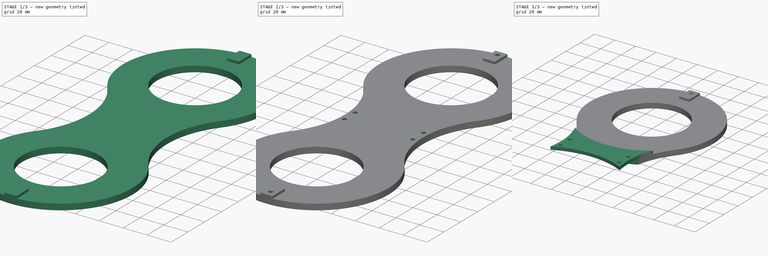
[diagram: build sequence overview — one tinted view per stage of 3, left to right]
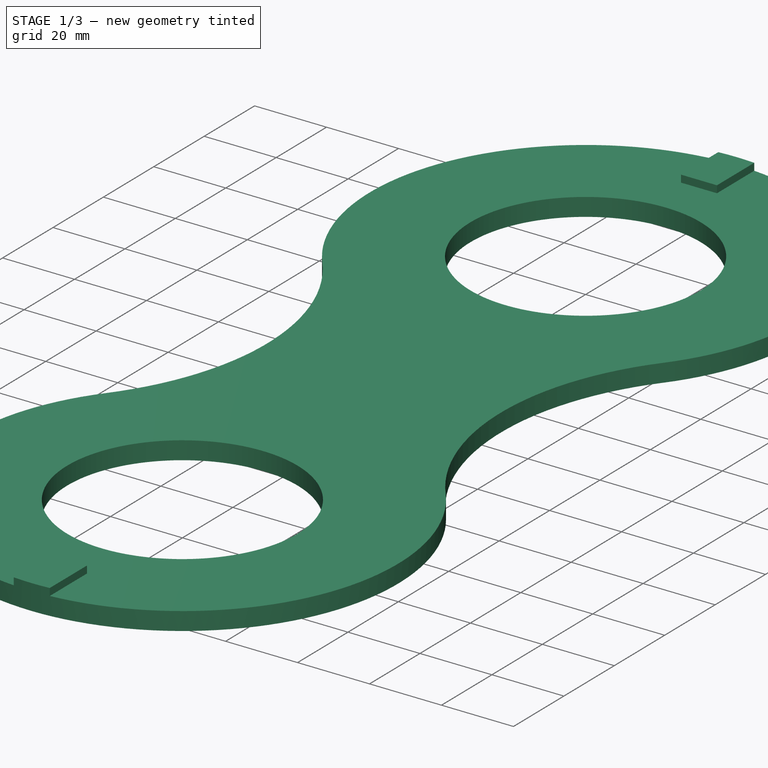
[diagram: stage 1 of 3 — iso view after this stage's code; geometry added in this stage tinted green]
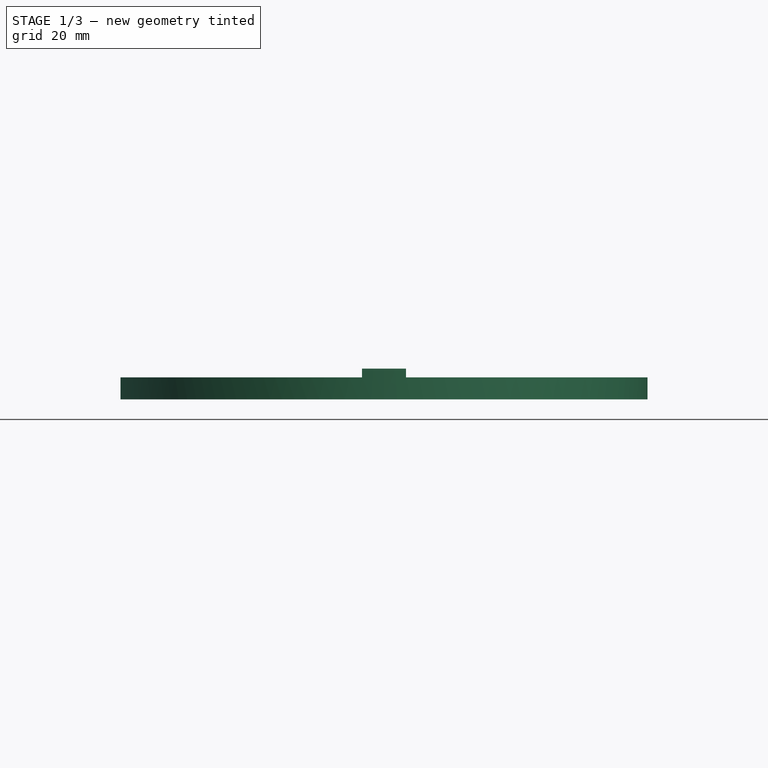
[diagram: stage 1 of 3 — front view after this stage's code; geometry added in this stage tinted green]
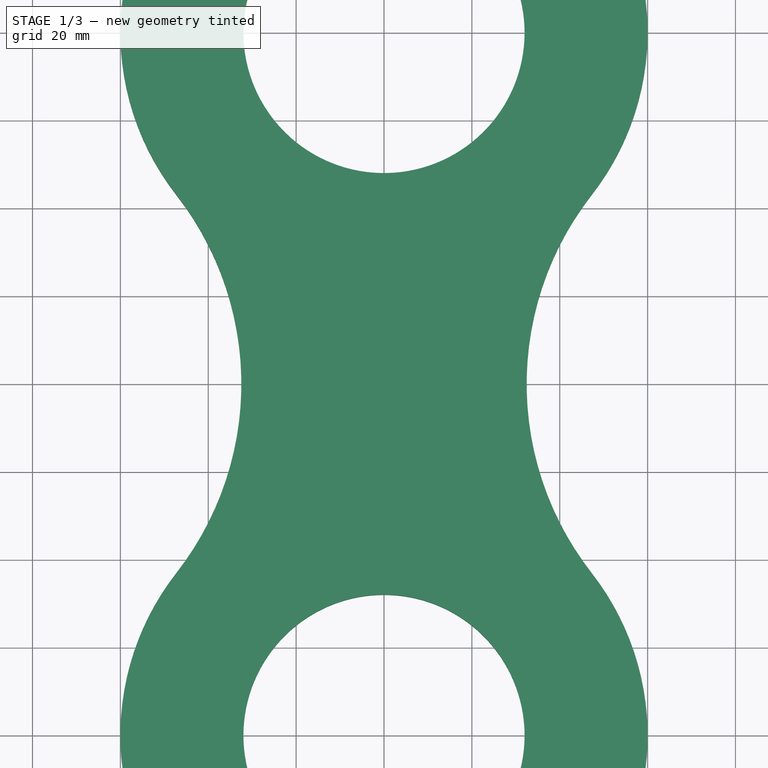
[diagram: stage 1 of 3 — top view after this stage's code; geometry added in this stage tinted green]
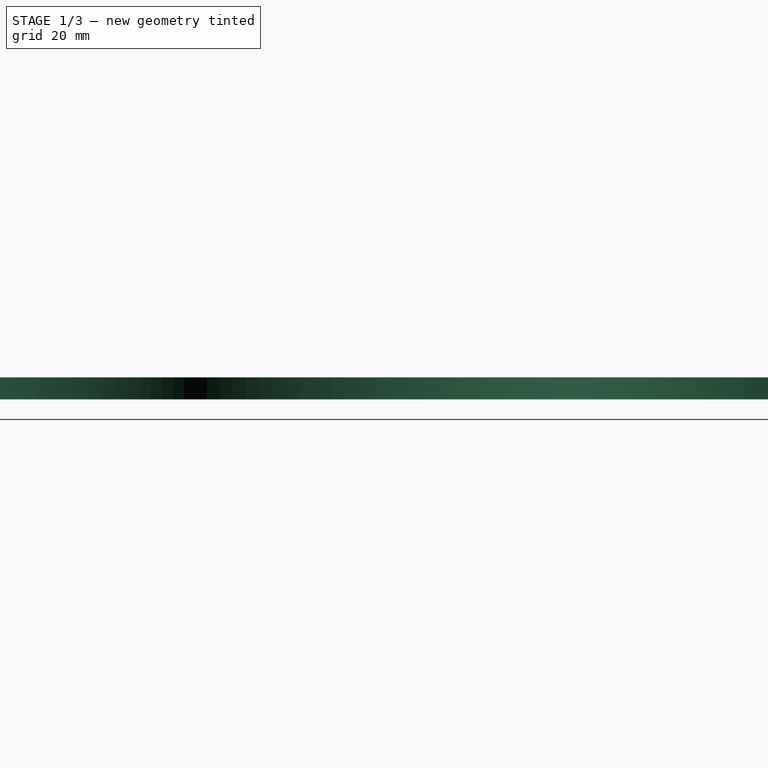
[diagram: stage 1 of 3 — right view after this stage's code; geometry added in this stage tinted green]
FCSTD DOCUMENT  (FreeCAD 0.19R24276 (Git))
Label: Art2BodyBCover_Splitted_B
License: All rights reserved
LicenseURL: http://en.wikipedia.org/wiki/All_rights_reserved
objects: Sketcher::SketchObject×7, PartDesign::Pocket×4, PartDesign::Pad×3, Spreadsheet::Sheet×1, PartDesign::Body×1
note: 22 computed .brp shape members not serialized (recipe doc carries the construction recipe); baked Part::Feature solids carry a one-line shape summary decoded from their .brp

FEATURE [Sketcher::SketchObject] Sketch
  FullyConstrained = true
  MapMode = 5
  Support = -> [XY_Plane]
  sketch-geometry (6):
    g0: Circle CenterX=0 CenterY=0 CenterZ=0 NormalX=0 NormalY=0 NormalZ=1 AngleXU=0 Radius=32
    g1: Circle CenterX=0 CenterY=160 CenterZ=0 NormalX=0 NormalY=0 NormalZ=1 AngleXU=0 Radius=32
    g2: ArcOfCircle CenterX=0 CenterY=0 CenterZ=0 NormalX=0 NormalY=0 NormalZ=1 AngleXU=0 Radius=60 StartAngle=2.47872 EndAngle=6.94606
    g3: ArcOfCircle CenterX=0 CenterY=160 CenterZ=0 NormalX=0 NormalY=0 NormalZ=1 AngleXU=0 Radius=60 StartAngle=5.62031 EndAngle=10.0877
    g4: ArcOfCircle CenterX=102.47 CenterY=80 CenterZ=0 NormalX=0 NormalY=0 NormalZ=1 AngleXU=0 Radius=70 StartAngle=2.47872 EndAngle=3.80447
    g5: ArcOfCircle CenterX=-102.47 CenterY=80 CenterZ=0 NormalX=0 NormalY=0 NormalZ=1 AngleXU=0 Radius=70 StartAngle=5.62031 EndAngle=6.94606
  constraints (15):
    c: Coincident(g0,g-1)
    c: PointOnObject(g1,g-2)
    c: Equal(g1,g0)
    c: Radius(g0) = 32
    c: DistanceY(g0,g1) = 160
    c: Coincident(g2,g0)
    c: Coincident(g3,g1)
    c: Coincident(g5,g3)
    c: Equal(g2,g3)
    c: Radius(g2) = 60
    c: Tangent(g4,g3) = 1.5708
    c: Tangent(g4,g2) = 1.5708
    c: Tangent(g5,g2) = 1.5708
    c: Symmetric(g5,g4,g-2)
    c: Radius(g4) = 70
FEATURE [PartDesign::Pad] Pad
  Direction = (1,1,1)
  Length = 5
  Length2 = 100
  Profile = -> Sketch
  Refine = true
  Type = 0
FEATURE [Sketcher::SketchObject] Sketch001
  ExternalGeometry = -> [Pad]
  FullyConstrained = true
  MapMode = 5
  Placement = pos=(0,0,5) rot=(0,0,1;0rad)
  Support = -> [Pad]
  sketch-geometry (8):
    g0: LineSegment StartX=-5 StartY=-59.7913 StartZ=0 EndX=-5 EndY=-45 EndZ=0
    g1: LineSegment StartX=-5 StartY=-45 StartZ=0 EndX=5 EndY=-45 EndZ=0
    g2: LineSegment StartX=5 StartY=-45 StartZ=0 EndX=5 EndY=-59.7913 EndZ=0
    g3: ArcOfCircle CenterX=0 CenterY=0 CenterZ=0 NormalX=0 NormalY=0 NormalZ=1 AngleXU=0 Radius=60 StartAngle=4.62896 EndAngle=4.79582
    g4: ArcOfCircle CenterX=0 CenterY=160 CenterZ=0 NormalX=0 NormalY=0 NormalZ=1 AngleXU=0 Radius=60 StartAngle=1.48737 EndAngle=1.65423
    g5: LineSegment StartX=-5 StartY=219.791 StartZ=0 EndX=-5 EndY=205 EndZ=0
    g6: LineSegment StartX=-5 StartY=205 StartZ=0 EndX=5 EndY=205 EndZ=0
    g7: LineSegment StartX=5 StartY=205 StartZ=0 EndX=5 EndY=219.791 EndZ=0
  constraints (22):
    c: Vertical(g0)
    c: Coincident(g0,g1)
    c: Coincident(g1,g2)
    c: Vertical(g2)
    c: Symmetric(g0,g1,g-2)
    c: DistanceX(g1,g1) = 10
    c: Coincident(g3,g-1)
    c: Coincident(g3,g0)
    c: Coincident(g3,g2)
    c: Equal(g3,g-3)
    c: DistanceY(g1,g3) = 45
    c: Coincident(g4,g-4)
    c: Vertical(g5)
    c: Coincident(g5,g6)
    c: Coincident(g6,g7)
    c: Vertical(g7)
    c: Coincident(g7,g4)
    c: Coincident(g4,g5)
    c: Equal(g4,g-4)
    c: Symmetric(g6,g5,g-2)
    c: DistanceY(g4,g6) = 45
    c: DistanceX(g6,g6) = 10
FEATURE [PartDesign::Pad] Pad001
  BaseFeature = -> Pad
  Direction = (1,1,1)
  Length = 2
  Length2 = 100
  Profile = -> Sketch001
  Refine = true
  Type = 0
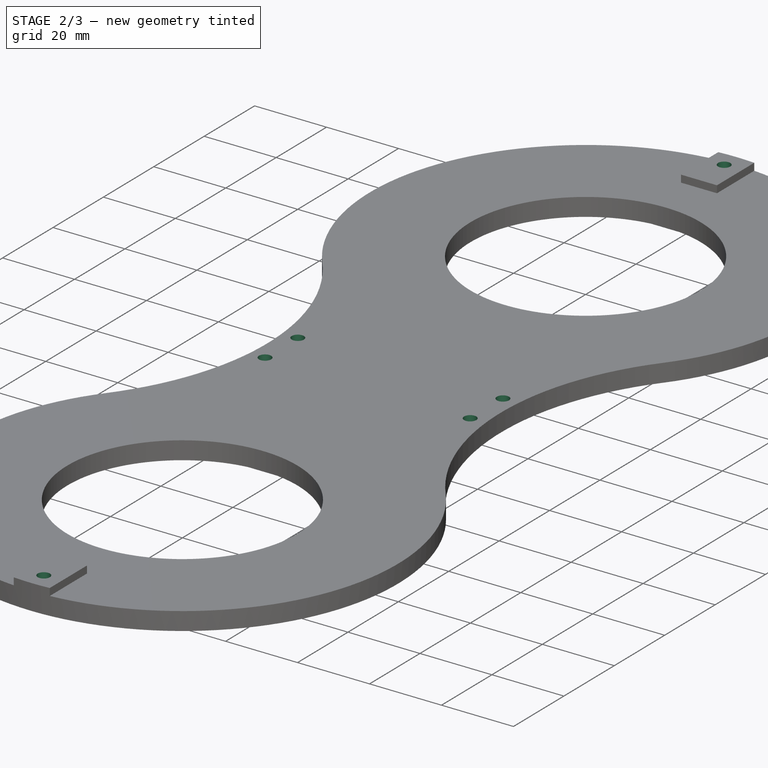
[diagram: stage 2 of 3 — iso view after this stage's code; geometry added in this stage tinted green]
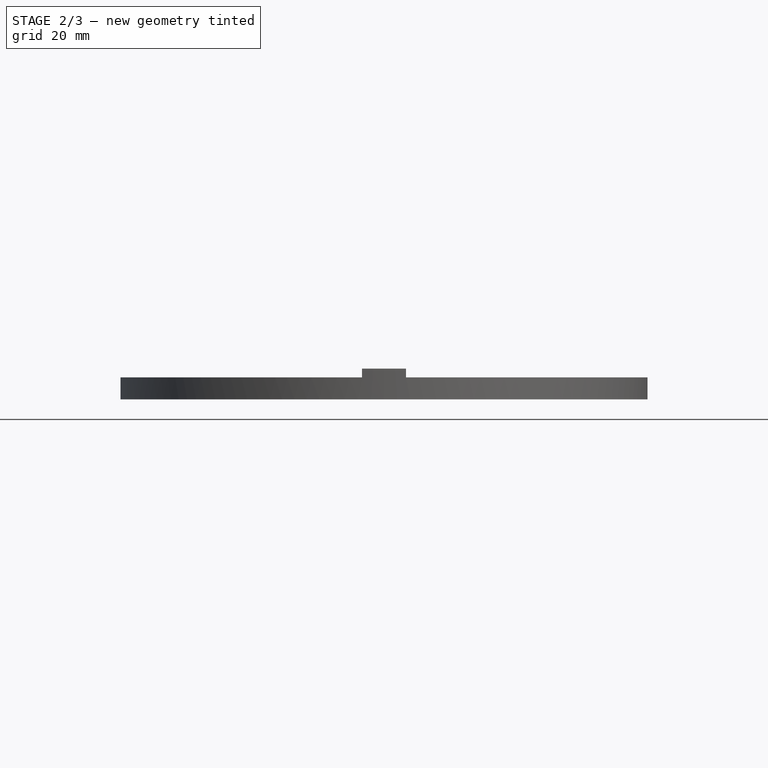
[diagram: stage 2 of 3 — front view after this stage's code; geometry added in this stage tinted green]
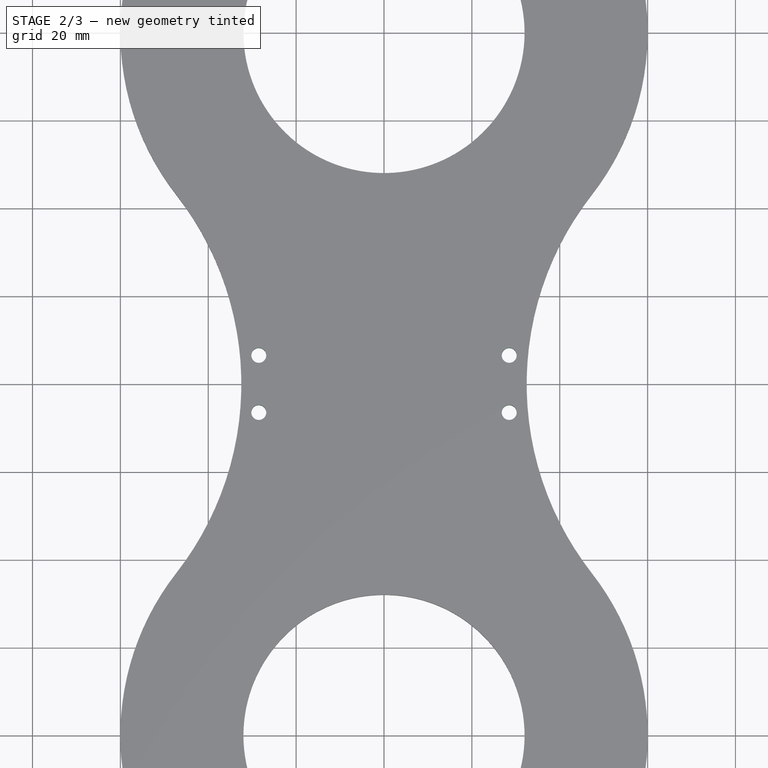
[diagram: stage 2 of 3 — top view after this stage's code; geometry added in this stage tinted green]
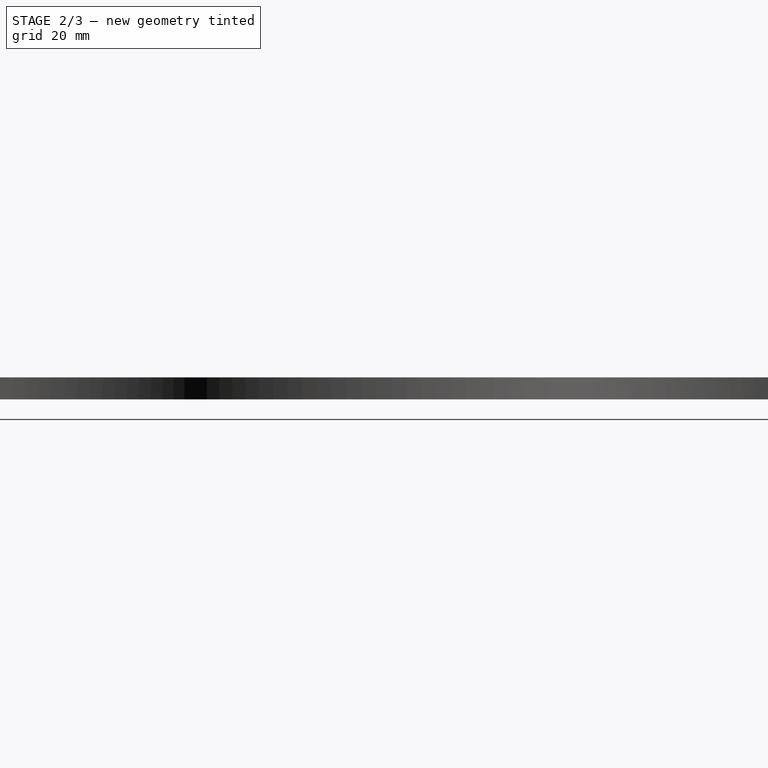
[diagram: stage 2 of 3 — right view after this stage's code; geometry added in this stage tinted green]
FEATURE [Sketcher::SketchObject] Sketch002
  ExternalGeometry = -> [Pad001]
  FullyConstrained = true
  MapMode = 5
  Placement = pos=(0,0,7) rot=(0,0,1;0rad)
  Support = -> [Pad001]
  expr: Constraints[5] = Spreadsheet.M3BoltBodyRadius
  sketch-geometry (2):
    g0: Circle CenterX=0 CenterY=-55 CenterZ=0 NormalX=0 NormalY=0 NormalZ=1 AngleXU=0 Radius=1.7
    g1: Circle CenterX=0 CenterY=215 CenterZ=0 NormalX=0 NormalY=0 NormalZ=1 AngleXU=0 Radius=1.7
  constraints (6):
    c: PointOnObject(g0,g-2)
    c: DistanceY(g0,g-1) = 55
    c: PointOnObject(g1,g-2)
    c: DistanceY(g-3,g1) = 55
    c: Equal(g1,g0)
    c: Radius(g1) = 1.7
FEATURE [Spreadsheet::Sheet] Spreadsheet
  cells = A2=M3BoltBodyRadius; B2(M3BoltBodyRadius)=1.7; A3=M3BoltHeadRadius; B3(M3BoltHeadRadius)=2.95; A4=M3NutCircumradius; B4(M3NutCircumradius)=3.35; A5=M3NutThickness; B5(M3NutThickness)=3; A6=Bearing655ZZBodyRadius; B6(Bearing655ZZBodyRadius)=8.199999999999999
FEATURE [PartDesign::Pocket] Pocket
  BaseFeature = -> Pad001
  Length = 5
  Length2 = 100
  Profile = -> Sketch002
  Refine = true
  Type = 1
FEATURE [Sketcher::SketchObject] Sketch003
  ExternalGeometry = -> [Pocket]
  FullyConstrained = true
  MapMode = 5
  Placement = pos=(0,0,0) rot=(1,0,0;3.14159rad)
  Support = -> [Pocket]
  expr: Constraints[2] = Spreadsheet.M3BoltHeadRadius
  sketch-geometry (2):
    g0: Circle CenterX=0 CenterY=55 CenterZ=0 NormalX=0 NormalY=0 NormalZ=1 AngleXU=0 Radius=2.95
    g1: Circle CenterX=0 CenterY=-215 CenterZ=0 NormalX=0 NormalY=0 NormalZ=1 AngleXU=0 Radius=2.95
  constraints (4):
    c: Coincident(g0,g-3)
    c: Coincident(g1,g-4)
    c: Radius(g1) = 2.95
    c: Equal(g0,g1)
FEATURE [PartDesign::Pocket] Pocket001
  BaseFeature = -> Pocket
  Length = 3
  Length2 = 100
  Profile = -> Sketch003
  Refine = true
  Type = 0
FEATURE [Sketcher::SketchObject] Sketch004
  ExternalGeometry = -> [Pocket001]
  FullyConstrained = true
  MapMode = 5
  Placement = pos=(0,0,0) rot=(1,0,0;3.14159rad)
  Support = -> [Pocket001]
  expr: Constraints[16] = Spreadsheet.M3BoltBodyRadius
  sketch-geometry (10):
    g0: LineSegment StartX=-28.5 StartY=-73.5 StartZ=0 EndX=28.5 EndY=-73.5 EndZ=0
    g1: LineSegment StartX=28.5 StartY=-73.5 StartZ=0 EndX=28.5 EndY=-86.5 EndZ=0
    g2: LineSegment StartX=28.5 StartY=-86.5 StartZ=0 EndX=-28.5 EndY=-86.5 EndZ=0
    g3: LineSegment StartX=-28.5 StartY=-86.5 StartZ=0 EndX=-28.5 EndY=-73.5 EndZ=0
    g4: Circle CenterX=28.5 CenterY=-73.5 CenterZ=0 NormalX=0 NormalY=0 NormalZ=1 AngleXU=0 Radius=1.7
    g5: Circle CenterX=28.5 CenterY=-86.5 CenterZ=0 NormalX=0 NormalY=0 NormalZ=1 AngleXU=0 Radius=1.7
    g6: Circle CenterX=-28.5 CenterY=-86.5 CenterZ=0 NormalX=0 NormalY=0 NormalZ=1 AngleXU=0 Radius=1.7
    g7: Circle CenterX=-28.5 CenterY=-73.5 CenterZ=0 NormalX=0 NormalY=0 NormalZ=1 AngleXU=0 Radius=1.7
    g8: LineSegment StartX=0 StartY=0 StartZ=0 EndX=0 EndY=-73.5 EndZ=0
    g9: LineSegment StartX=0 StartY=-160 StartZ=0 EndX=0 EndY=-86.5 EndZ=0
  constraints (25):
    c: Coincident(g0,g1)
    c: Coincident(g1,g2)
    c: Coincident(g2,g3)
    c: Coincident(g3,g0)
    c: Horizontal(g0)
    c: Vertical(g1)
    c: Vertical(g3)
    c: DistanceY(g1,g1) = 13
    c: DistanceX(g2,g2) = 57
    c: Coincident(g4,g0)
    c: Coincident(g5,g1)
    c: Coincident(g6,g2)
    c: Coincident(g7,g0)
    c: Equal(g4,g7)
    c: Equal(g7,g6)
    c: Equal(g6,g5)
    c: Radius(g5) = 1.7
    c: Symmetric(g5,g6,g-2)
    c: Coincident(g8,g-1)
    c: PointOnObject(g8,g0)
    c: Coincident(g9,g-3)
    c: PointOnObject(g9,g2)
    c: Vertical(g8)
    c: Vertical(g9)
    c: Equal(g8,g9)
FEATURE [PartDesign::Pocket] Pocket002
  BaseFeature = -> Pocket001
  Length = 5
  Length2 = 100
  Profile = -> Sketch004
  Refine = true
  Type = 1
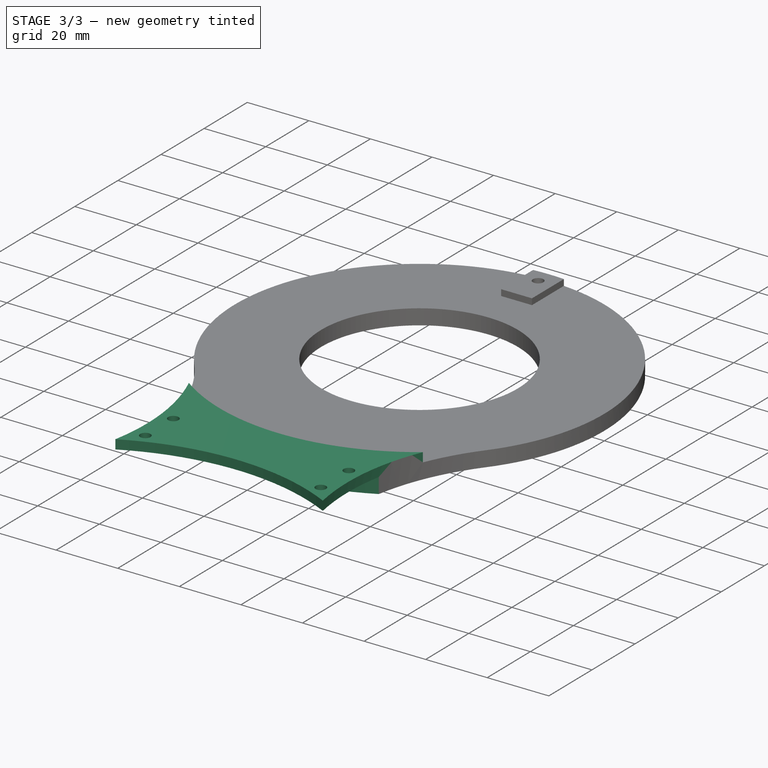
[diagram: stage 3 of 3 — iso view after this stage's code; geometry added in this stage tinted green]
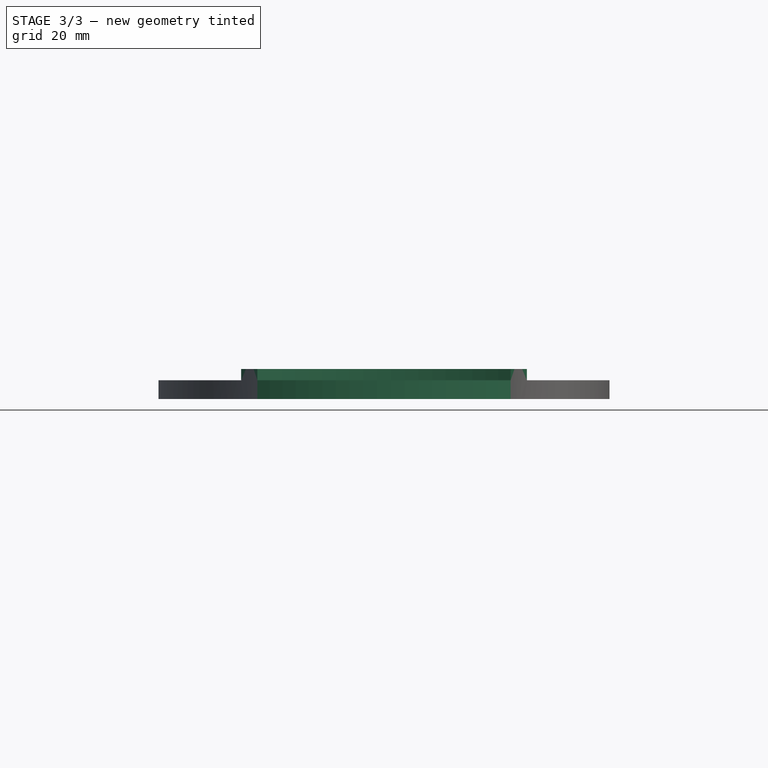
[diagram: stage 3 of 3 — front view after this stage's code; geometry added in this stage tinted green]
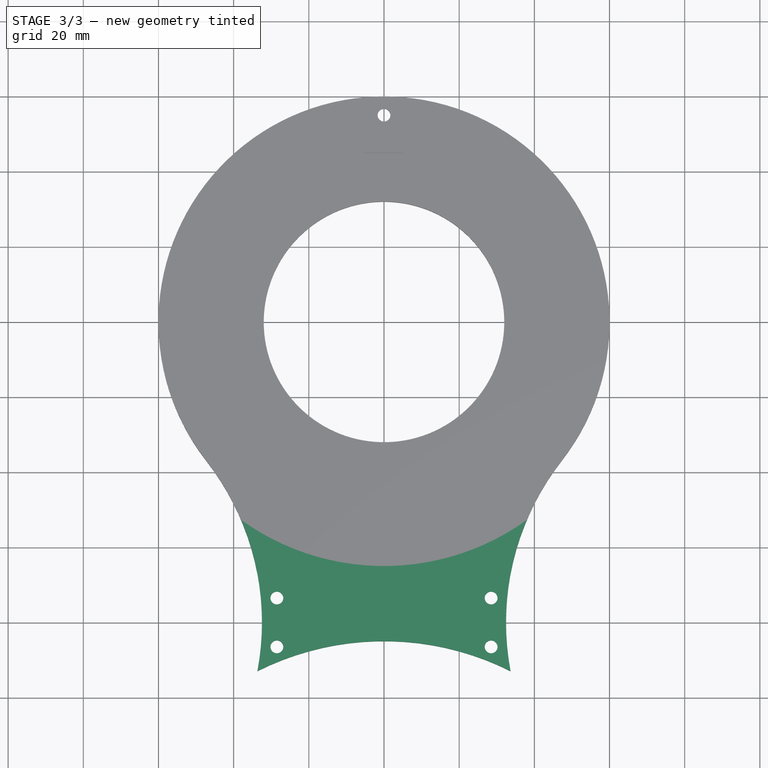
[diagram: stage 3 of 3 — top view after this stage's code; geometry added in this stage tinted green]
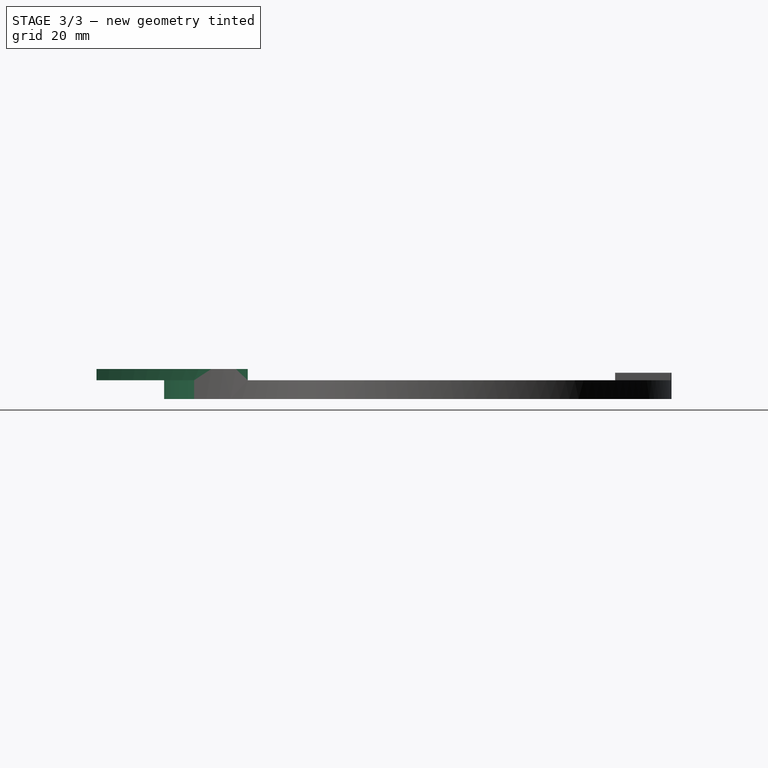
[diagram: stage 3 of 3 — right view after this stage's code; geometry added in this stage tinted green]
FEATURE [Sketcher::SketchObject] Sketch006
  ExternalGeometry = -> [Pocket002]
  FullyConstrained = true
  MapMode = 5
  Placement = pos=(0,0,0) rot=(1,0,0;3.14159rad)
  Support = -> [Pocket002]
  sketch-geometry (4):
    g0: ArcOfCircle CenterX=0 CenterY=-160 CenterZ=0 NormalX=0 NormalY=0 NormalZ=1 AngleXU=0 Radius=75 StartAngle=0.522315 EndAngle=2.61928
    g1: LineSegment StartX=-65 StartY=-122.583 StartZ=0 EndX=-65 EndY=77.4166 EndZ=0
    g2: LineSegment StartX=-65 StartY=77.4166 StartZ=0 EndX=65 EndY=77.4166 EndZ=0
    g3: LineSegment StartX=65 StartY=77.4166 StartZ=0 EndX=65 EndY=-122.583 EndZ=0
  constraints (11):
    c: Coincident(g1,g2)
    c: Coincident(g2,g3)
    c: Radius(g0) = 75
    c: Vertical(g1)
    c: Vertical(g3)
    c: Coincident(g0,g3)
    c: Symmetric(g1,g2,g-2)
    c: Coincident(g1,g0)
    c: DistanceX(g2,g2) = 130
    c: Coincident(g0,g-3)
    c: DistanceY(g3,g3) = 200
FEATURE [PartDesign::Pocket] Pocket004
  BaseFeature = -> Pocket002
  Length = 5
  Length2 = 100
  Profile = -> Sketch006
  Refine = true
  Type = 1
FEATURE [Sketcher::SketchObject] Sketch007
  ExternalGeometry = -> [Pocket004,Pocket002]
  FullyConstrained = true
  MapMode = 5
  Placement = pos=(0,0,5) rot=(0,0,1;0rad)
  Support = -> [Pocket004]
  sketch-geometry (8):
    g0: ArcOfCircle CenterX=0 CenterY=0 CenterZ=0 NormalX=0 NormalY=0 NormalZ=1 AngleXU=0 Radius=75 StartAngle=1.10499 EndAngle=2.0366
    g1: ArcOfCircle CenterX=102.47 CenterY=80 CenterZ=0 NormalX=0 NormalY=0 NormalZ=1 AngleXU=0 Radius=70 StartAngle=2.74155 EndAngle=3.32825
    g2: ArcOfCircle CenterX=-102.47 CenterY=80 CenterZ=0 NormalX=0 NormalY=0 NormalZ=1 AngleXU=0 Radius=70 StartAngle=6.09653 EndAngle=6.68323
    g3: ArcOfCircle CenterX=0 CenterY=160 CenterZ=0 NormalX=0 NormalY=0 NormalZ=1 AngleXU=0 Radius=65 StartAngle=4.08805 EndAngle=5.33673
    g4: Circle CenterX=-28.5 CenterY=86.5 CenterZ=0 NormalX=0 NormalY=0 NormalZ=1 AngleXU=0 Radius=1.7
    g5: Circle CenterX=-28.5 CenterY=73.5 CenterZ=0 NormalX=0 NormalY=0 NormalZ=1 AngleXU=0 Radius=1.7
    g6: Circle CenterX=28.5 CenterY=73.5 CenterZ=0 NormalX=0 NormalY=0 NormalZ=1 AngleXU=0 Radius=1.7
    g7: Circle CenterX=28.5 CenterY=86.5 CenterZ=0 NormalX=0 NormalY=0 NormalZ=1 AngleXU=0 Radius=1.7
  constraints (20):
    c: Coincident(g1,g-3)
    c: Coincident(g1,g0)
    c: Coincident(g2,g-4)
    c: Coincident(g2,g0)
    c: Coincident(g0,g-1)
    c: Radius(g0) = 75
    c: Equal(g2,g-4)
    c: Equal(g-3,g1)
    c: Coincident(g3,g-5)
    c: Coincident(g3,g2)
    c: Coincident(g3,g1)
    c: Radius(g3) = 65
    c: Coincident(g4,g-6)
    c: Coincident(g5,g-7)
    c: Coincident(g6,g-8)
    c: Coincident(g7,g-9)
    c: Equal(g7,g-9)
    c: Equal(g6,g-8)
    c: Equal(g-7,g5)
    c: Equal(g4,g-6)
FEATURE [PartDesign::Pad] Pad002
  BaseFeature = -> Pocket004
  Direction = (1,1,1)
  Length = 3
  Length2 = 100
  Profile = -> Sketch007
  Refine = true
  Type = 0
FEATURE [PartDesign::Body] Body  label="Art2BodyBCover_Splitted_B"
  Group = -> [Sketch,Pad,Sketch001,Pad001,Sketch002,Pocket,Sketch003,Pocket001,Sketch004,Pocket002,Sketch006,Pocket004,Sketch007,Pad002]
  Origin = -> Origin
  Tip = -> Pad002
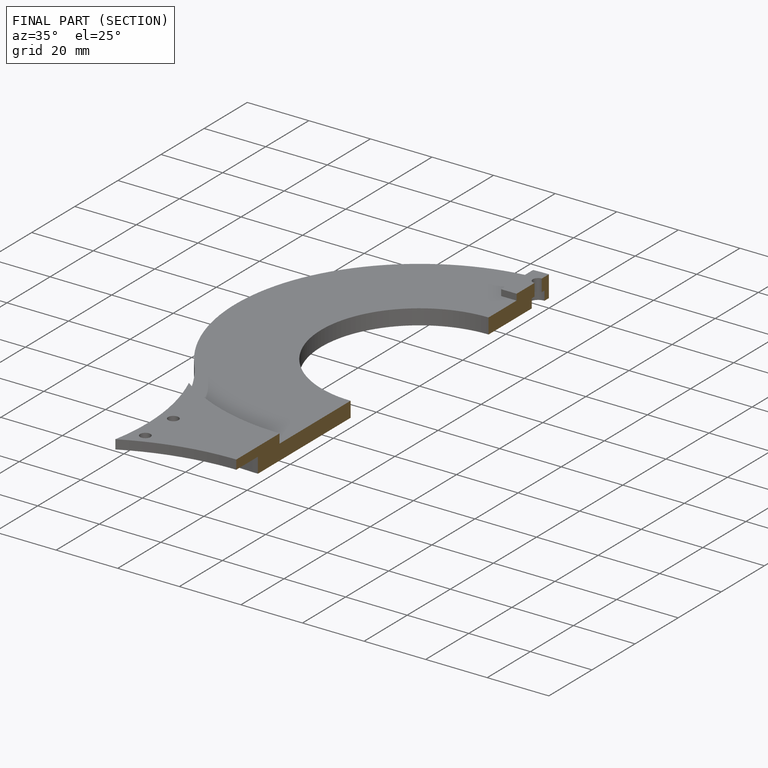
[diagram: finished part — half-section view (interior)]
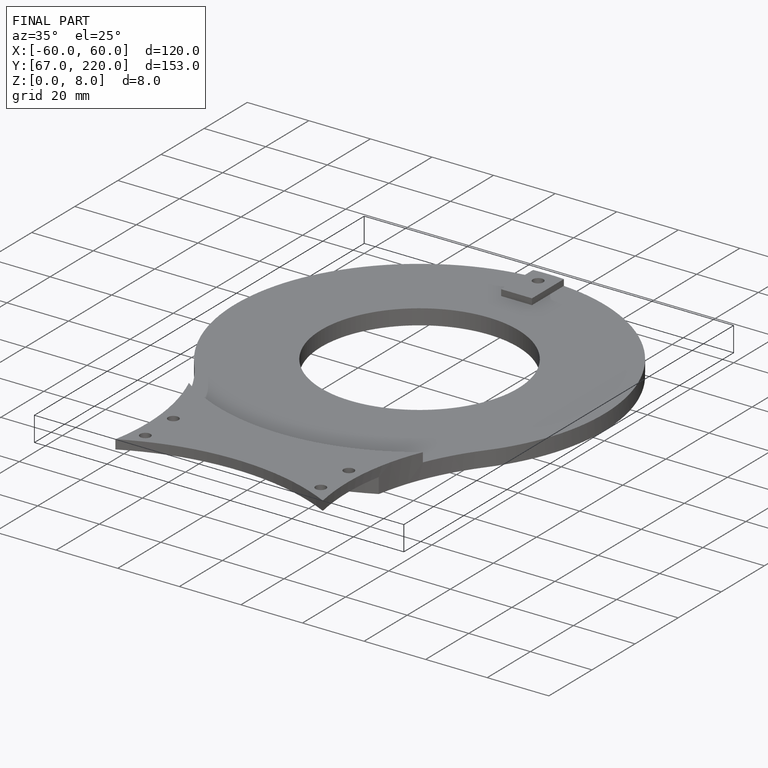
[diagram: finished part — iso view with bounding-box wireframe]
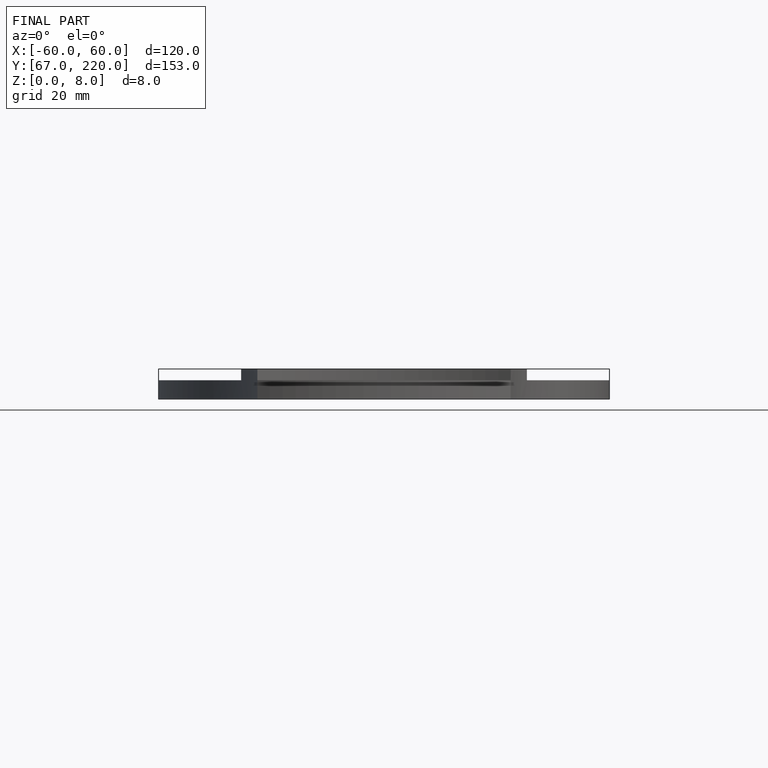
[diagram: finished part — front view with bounding-box wireframe]
